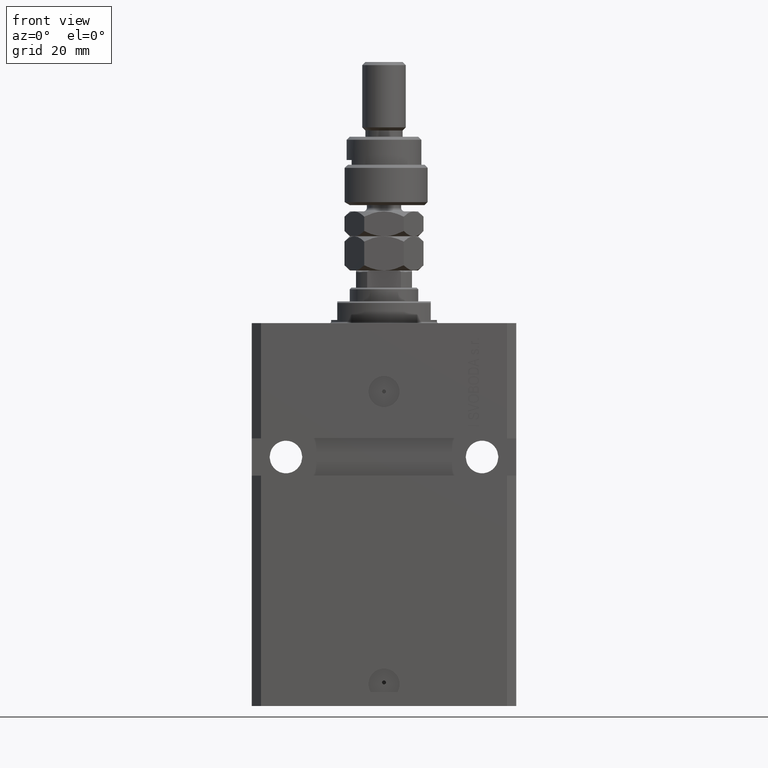
[diagram: clean part render]
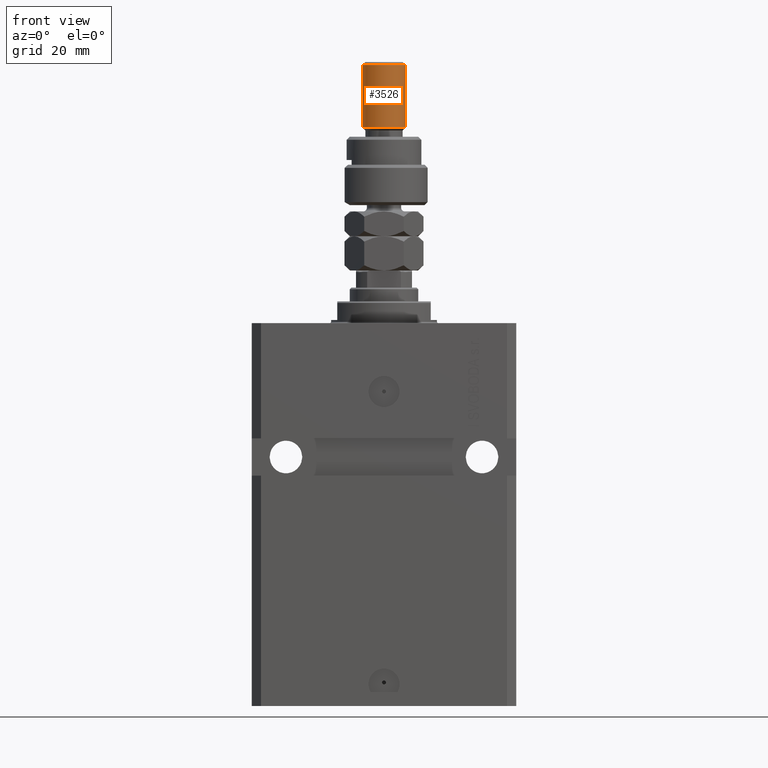
[diagram: same view with one face highlighted and labeled with its STEP entity id]
A machine part, front view. The second image highlights one B-rep face of the part: STEP entity #3526.
In plain terms, the highlighted cylindrical surface (edge-blend (fillet) strip) has radius 7 mm, axis along (-0, -0, -1).
Its self-contained STEP definition (entity closure, byte-faithful):
#30 = DIRECTION ( 'NONE',  ( -0.000000000000000000, -0.000000000000000000, 1.000000000000000000 ) ) ;
#38 = VERTEX_POINT ( 'NONE', #4754 ) ;
#1997 = CARTESIAN_POINT ( 'NONE',  ( -7.000000000000000000, 0.000000000000000000, 24.99999999999998934 ) ) ;
#3526 = ADVANCED_FACE ( 'NONE', ( #22824 ), #35173, .T. ) ;
#3623 = VECTOR ( 'NONE', #24316, 1000.000000000000000 ) ;
#3758 = AXIS2_PLACEMENT_3D ( 'NONE', #18455, #30552, #42641 ) ;
#4754 = CARTESIAN_POINT ( 'NONE',  ( -7.000000000000000000, 0.000000000000000000, 44.99999999999999289 ) ) ;
#5823 = ORIENTED_EDGE ( 'NONE', *, *, #42489, .F. ) ;
#8046 = CARTESIAN_POINT ( 'NONE',  ( 7.000000000000000000, 8.572527594031473190E-16, 24.99999999999998934 ) ) ;
#10408 = CARTESIAN_POINT ( 'NONE',  ( -7.000000000000000000, 0.000000000000000000, 46.00000000000000000 ) ) ;
#11264 = CARTESIAN_POINT ( 'NONE',  ( 0.000000000000000000, 0.000000000000000000, 44.99999999999999289 ) ) ;
#12568 = VERTEX_POINT ( 'NONE', #46443 ) ;
#16652 = VERTEX_POINT ( 'NONE', #8046 ) ;
#18455 = CARTESIAN_POINT ( 'NONE',  ( 0.000000000000000000, 0.000000000000000000, 46.00000000000000000 ) ) ;
#18995 = EDGE_LOOP ( 'NONE', ( #5823, #28667, #39048, #23297 ) ) ;
#22260 = DIRECTION ( 'NONE',  ( -0.000000000000000000, -0.000000000000000000, -1.000000000000000000 ) ) ;
#22824 = FACE_OUTER_BOUND ( 'NONE', #18995, .T. ) ;
#23297 = ORIENTED_EDGE ( 'NONE', *, *, #32234, .T. ) ;
#24316 = DIRECTION ( 'NONE',  ( -0.000000000000000000, -0.000000000000000000, -1.000000000000000000 ) ) ;
#25107 = EDGE_CURVE ( 'NONE', #38, #33426, #25374, .T. ) ;
#25374 = LINE ( 'NONE', #10408, #50947 ) ;
#26420 = CIRCLE ( 'NONE', #27228, 7.000000000000000000 ) ;
#26984 = DIRECTION ( 'NONE',  ( 0.000000000000000000, 0.000000000000000000, -1.000000000000000000 ) ) ;
#27228 = AXIS2_PLACEMENT_3D ( 'NONE', #50012, #30, #30181 ) ;
#28264 = AXIS2_PLACEMENT_3D ( 'NONE', #11264, #26984, #42681 ) ;
#28667 = ORIENTED_EDGE ( 'NONE', *, *, #42026, .T. ) ;
#30181 = DIRECTION ( 'NONE',  ( 1.000000000000000000, 0.000000000000000000, 0.000000000000000000 ) ) ;
#30552 = DIRECTION ( 'NONE',  ( -0.000000000000000000, -0.000000000000000000, -1.000000000000000000 ) ) ;
#32234 = EDGE_CURVE ( 'NONE', #33426, #16652, #26420, .T. ) ;
#33426 = VERTEX_POINT ( 'NONE', #1997 ) ;
#35173 = CYLINDRICAL_SURFACE ( 'NONE', #3758, 7.000000000000000000 ) ;
#36920 = CARTESIAN_POINT ( 'NONE',  ( 7.000000000000000000, 8.572527594031473190E-16, 46.00000000000000000 ) ) ;
#39048 = ORIENTED_EDGE ( 'NONE', *, *, #25107, .T. ) ;
#40612 = CIRCLE ( 'NONE', #28264, 7.000000000000000000 ) ;
#42026 = EDGE_CURVE ( 'NONE', #12568, #38, #40612, .T. ) ;
#42489 = EDGE_CURVE ( 'NONE', #12568, #16652, #44392, .T. ) ;
#42641 = DIRECTION ( 'NONE',  ( -1.000000000000000000, 0.000000000000000000, 0.000000000000000000 ) ) ;
#42681 = DIRECTION ( 'NONE',  ( 1.000000000000000000, 0.000000000000000000, 0.000000000000000000 ) ) ;
#44392 = LINE ( 'NONE', #36920, #3623 ) ;
#46443 = CARTESIAN_POINT ( 'NONE',  ( 7.000000000000000000, 8.572527594031473190E-16, 44.99999999999999289 ) ) ;
#50012 = CARTESIAN_POINT ( 'NONE',  ( 0.000000000000000000, 0.000000000000000000, 24.99999999999998934 ) ) ;
#50947 = VECTOR ( 'NONE', #22260, 1000.000000000000000 ) ;